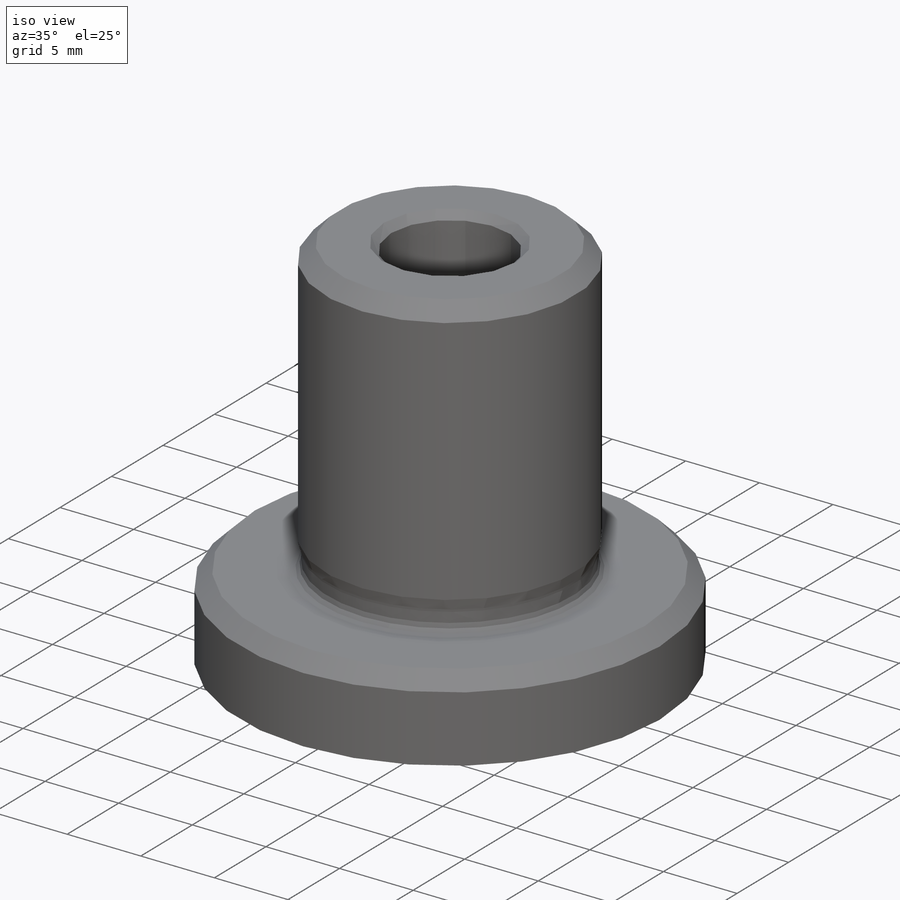
[diagram: iso view]
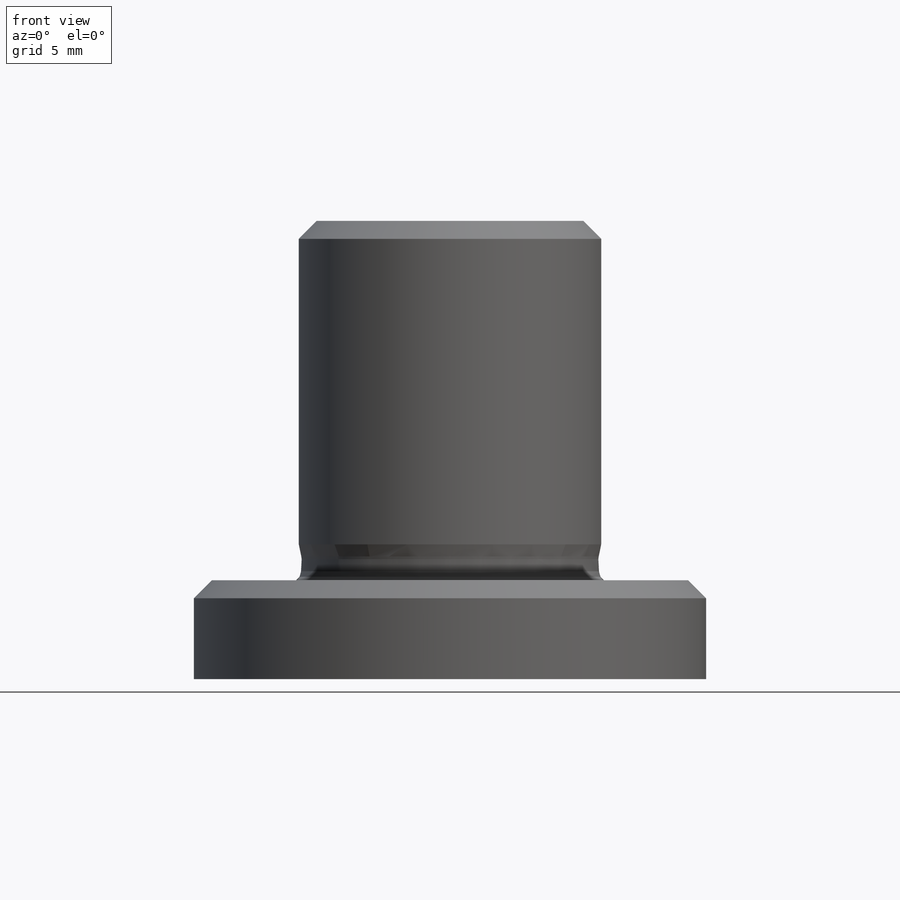
[diagram: front view]
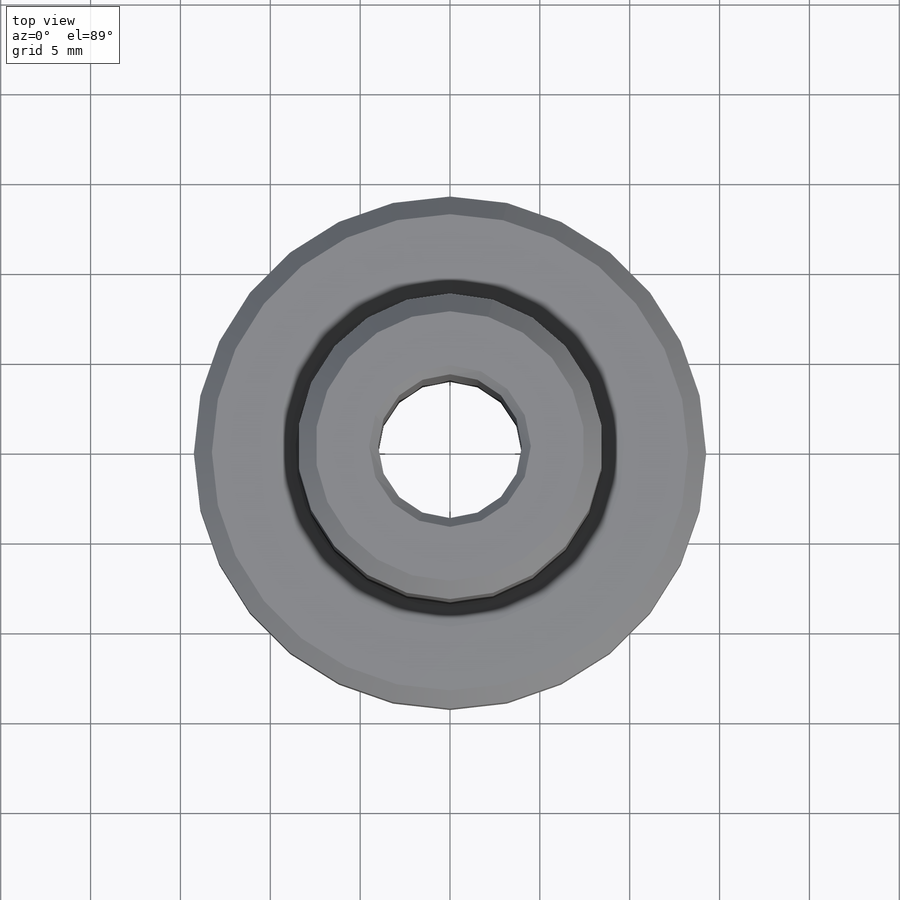
[diagram: top view]
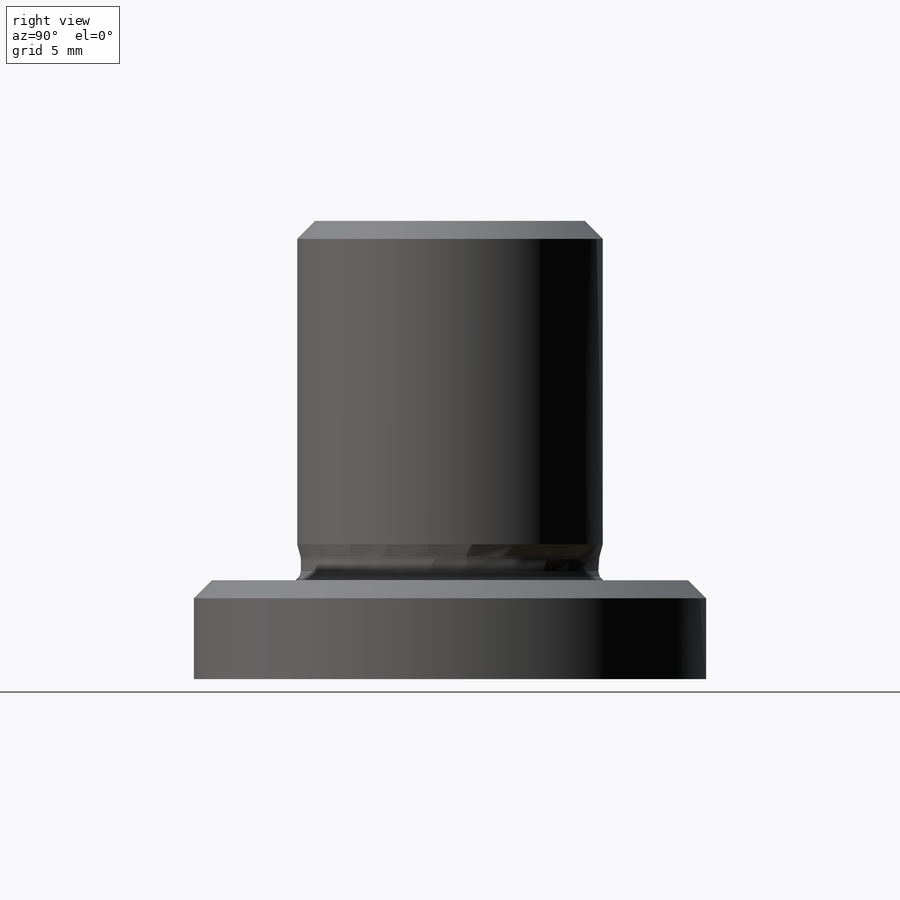
[diagram: right view]
SOLIDWORKS PART (.sldprt)
format: sldprt  version: not decoded by parser v0  size: 252,416 bytes
history: native  units: mm
features: chamfer x5, sketch x2, material x1, revolve x1, fillet x1 (+12 scaffold rows collapsed)
feature tree (22):
  scaffold x12  (default folders/planes/origin — collapsed)
  material  "X90CrMoV18 (1.4112)"
  sketch  "Sketch1"  dims[D1=8.0mm D2=17.0mm D3=28.5mm D4=5.5mm D5=20.0mm]
  revolve  "Revolve1"  Angle=360deg
  chamfer  "Chamfer1"  Distance=1mm Angle=45deg
  chamfer  "Chamfer2"  Distance=1mm Angle=45deg
  chamfer  "Chamfer3"  Distance=0.5mm Angle=45deg
  sketch  "Sketch3"  dims[d1=10.0mm g=1.4mm f1=2.0mm t2=0.1mm gt1=1.2mm t1=0.2mm D7=5.0mm]
  chamfer  "Chamfer11"  Distance=0.2mm Angle=75deg t1=0.2mm wi=75deg
  chamfer  "Chamfer21"  Distance=0.1mm Angle=82deg t2=0.1mm wi=82deg
  fillet  "Fillet"  Radius=0.6mm r=0.6mm
decode coverage: 9 of 9 modeling features carry decoded parameters
note: suppression state not decoded; provenance and decode notes live in map.json
